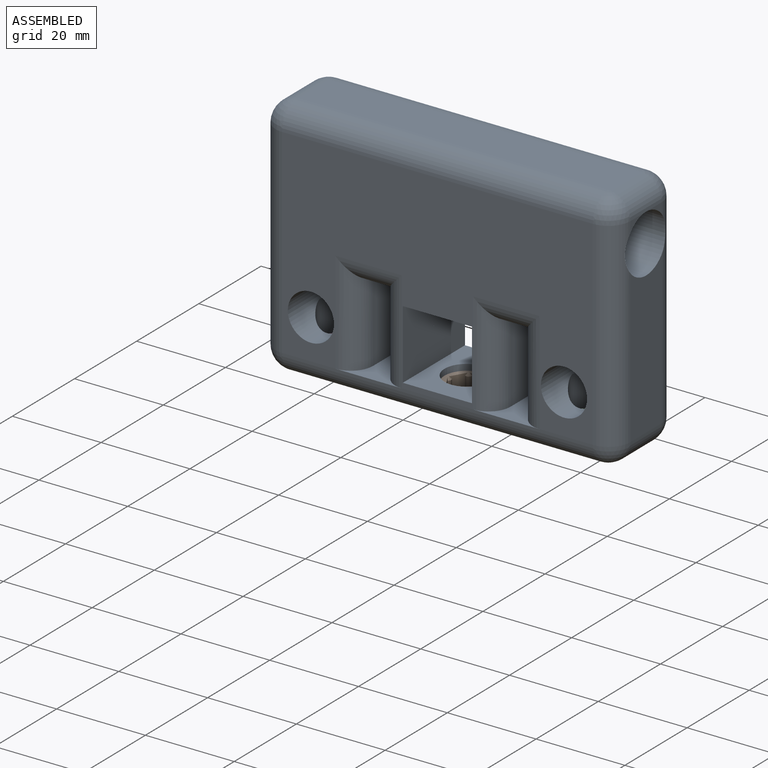
[diagram: assembled view]
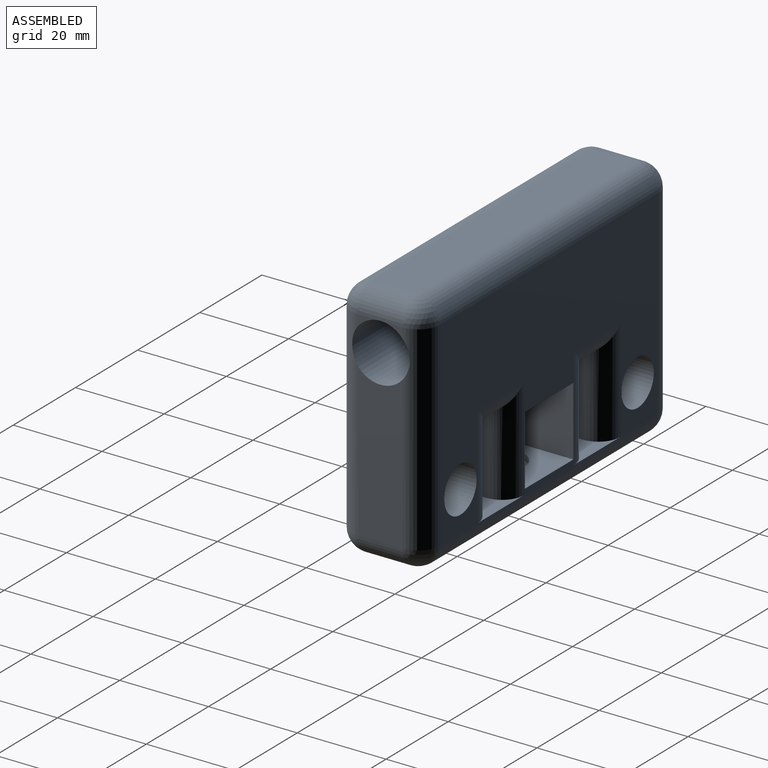
[diagram: assembled view, second angle]
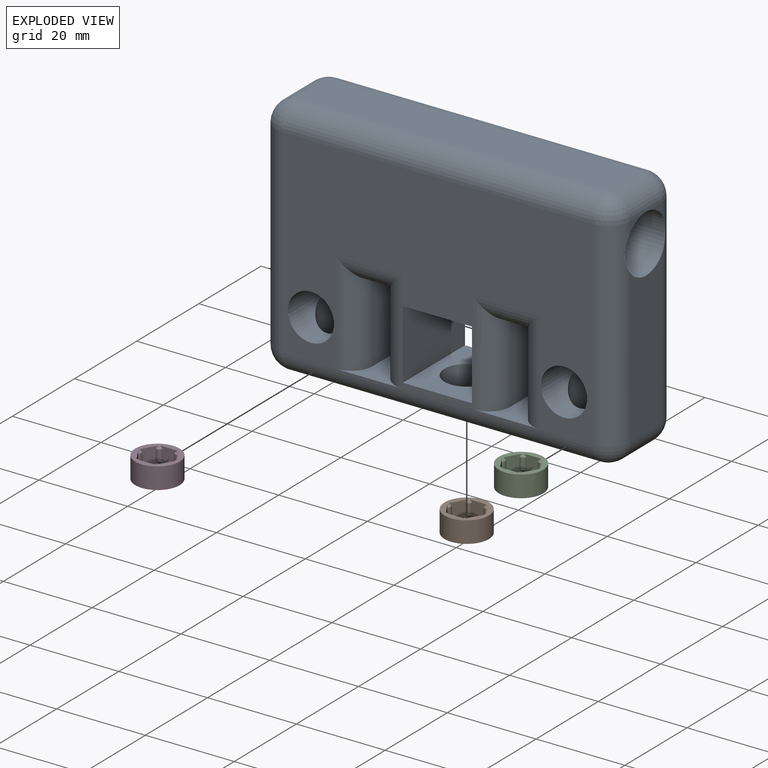
[diagram: exploded view]
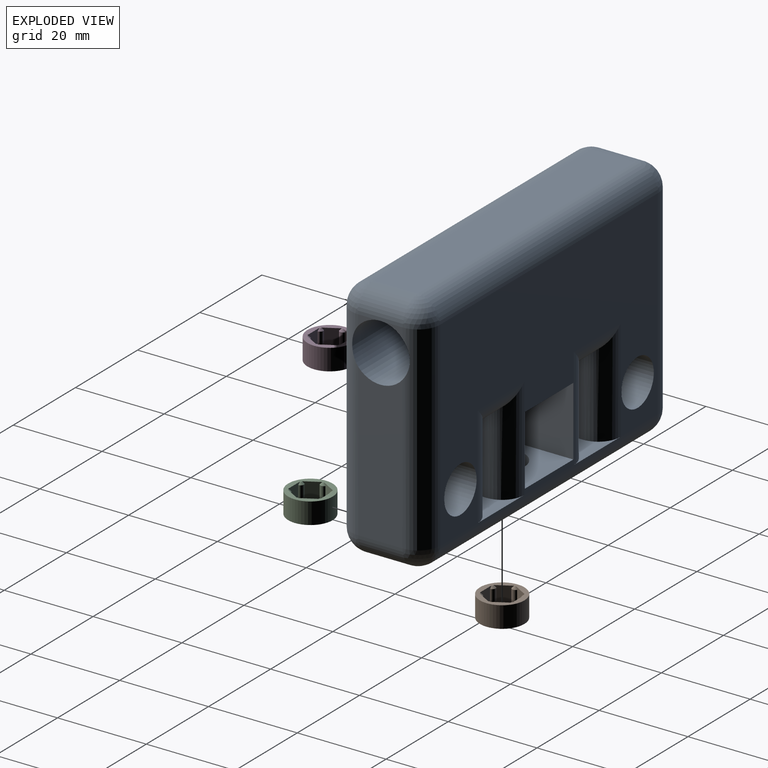
[diagram: exploded view, second angle]
ASSEMBLY  parts=4 mates=3
PART A: 67 faces, bbox 80x20x55 mm
  f0: plane 34.35x10mm, normal (-1,0,0), area 327.2mm2, adj f31,f38,f42,f43
  f1: plane 5x2.35mm, normal (-1,0,0), area 3.6mm2, adj f31,f35,f42
  f2: plane 63.5x10mm, normal (0,0,-1), area 440.6mm2, adj f32,f33,f34,f43,f48,f51
  f3: plane 5x2.35mm, normal (1,0,0), area 3.6mm2, adj f31,f40,f50
  f4: plane 5x2.35mm, normal (1,0,0), area 3.6mm2, adj f31,f40,f49
  f5: cylinder r=5.2mm len=20mm, axis (0,1,0), area 558.3mm2, adj f6,f7,f32
  f6: plane 70x45mm, normal (0,1,0), area 2046.7mm2, adj f5,f8,f9,f10,f11,f18,f41,f42
  f7: plane 70x45mm, normal (0,-1,0), area 2046.7mm2, adj f5,f8,f9,f10,f11,f18,f38,f39
  f8: plane 20x15.6mm, normal (-1,0,0), area 312mm2, adj f6,f7,f9,f11,f12
  f9: plane 20x15.6mm, normal (0,0,1), area 233.5mm2, adj f6,f7,f8,f10,f33
  f10: plane 20x15.6mm, normal (1,0,0), area 312mm2, adj f6,f7,f9,f11,f13
  f11: plane 20x15.6mm, normal (0,0,-1), area 312mm2, adj f6,f7,f8,f10,f14
  f12: cylinder r=0.05mm len=1.2mm, axis (-1,0,0), area 0.4mm2, adj f8,f17
  f13: cylinder r=0.05mm len=1.2mm, axis (-1,0,0), area 0.4mm2, adj f10,f16
  f14: cylinder r=0.05mm len=1.2mm, axis (0,0,1), area 0.4mm2, adj f11,f15
  f15: plane 0.1x0.1mm, normal (0,0,-1), area 0mm2, adj f14
  f16: plane 0.1x0.1mm, normal (1,0,0), area 0mm2, adj f13
  f17: plane 0.1x0.1mm, normal (-1,0,0), area 0mm2, adj f12
  f18: cylinder r=5.2mm len=20mm, axis (0,1,0), area 558.3mm2, adj f6,f7,f34
  f19: plane 10x6.5mm, normal (0,0,-1), area 25.7mm2, adj f32,f48,f51,f54
  f20: plane 34.35x10mm, normal (1,0,0), area 327.2mm2, adj f31,f49,f50,f54
  f21: plane 70x10mm, normal (0,0,1), area 700mm2, adj f35,f39,f40,f41
  f22: plane 18x10mm, normal (-1,0,0), area 180mm2, adj f23,f28,f55,f61
  f23: plane 20x15mm, normal (0,0,1), area 121.5mm2, adj f22,f24,f48,f51,f55,f56,f61,f62
  f24: plane 18x10mm, normal (1,0,0), area 180mm2, adj f23,f28,f56,f62
  f25: plane 18x10mm, normal (1,0,0), area 180mm2, adj f26,f29,f58,f64
  f26: plane 10x5mm, normal (0,0,-1), area 50mm2, adj f25,f27,f59,f65
  f27: plane 18x10mm, normal (-1,0,0), area 180mm2, adj f26,f29,f60,f66
  f28: plane 10x5mm, normal (0,0,-1), area 50mm2, adj f22,f24,f57,f63
  f29: plane 20x15mm, normal (0,0,1), area 121.5mm2, adj f25,f27,f48,f51,f58,f60,f64,f66
  f30: plane 5x2.35mm, normal (-1,0,0), area 3.6mm2, adj f31,f35,f38
  f31: cylinder r=6.5mm len=80mm, axis (1,0,0), area 3262.9mm2, adj f0,f1,f3,f4,f20,f30,f38,f42
  f32: cylinder r=5mm len=12.57mm, axis (0,0,-1), area 327.1mm2, adj f2,f5,f19
  f33: cylinder r=5mm len=10mm, axis (0,0,-1), area 194.8mm2, adj f2,f9,f48
  f34: cylinder r=5mm len=12.57mm, axis (0,0,-1), area 327.1mm2, adj f2,f18,f51
  f35: cylinder r=5mm len=10mm, axis (0,-1,0), area 78.5mm2, adj f1,f21,f30,f36,f37
  f36: sphere r=5mm, area 39.3mm2, adj f35,f38,f39
  f37: sphere r=5mm, area 39.3mm2, adj f35,f41,f42
  f38: cylinder r=5mm len=45mm, axis (0,0,1), area 344.8mm2, adj f0,f7,f30,f31,f36,f44
  f39: cylinder r=5mm len=70mm, axis (1,0,0), area 549.8mm2, adj f7,f21,f36,f45
  f40: cylinder r=5mm len=10mm, axis (0,1,0), area 78.5mm2, adj f3,f4,f21,f45,f46
  f41: cylinder r=5mm len=70mm, axis (-1,0,0), area 549.8mm2, adj f6,f21,f37,f46
  f42: cylinder r=5mm len=45mm, axis (0,0,-1), area 344.8mm2, adj f0,f1,f6,f31,f37,f47
  f43: cylinder r=5mm len=10mm, axis (0,1,0), area 78.5mm2, adj f0,f2,f44,f47
  f44: sphere r=5mm, area 39.3mm2, adj f38,f43,f48
  f45: sphere r=5mm, area 39.3mm2, adj f39,f40,f49
  f46: sphere r=5mm, area 39.3mm2, adj f40,f41,f50
  f47: sphere r=5mm, area 39.3mm2, adj f42,f43,f51
  f48: cylinder r=5mm len=70mm, axis (-1,0,0), area 548mm2, adj f2,f7,f19,f23,f29,f33,f44,f52
  f49: cylinder r=5mm len=45mm, axis (0,0,-1), area 344.8mm2, adj f4,f7,f20,f31,f45,f52
  f50: cylinder r=5mm len=45mm, axis (0,0,1), area 344.8mm2, adj f3,f6,f20,f31,f46,f53
  f51: cylinder r=5mm len=70mm, axis (1,0,0), area 549.6mm2, adj f2,f6,f19,f23,f29,f34,f47,f53
  f52: sphere r=5mm, area 39.3mm2, adj f48,f49,f54
  f53: sphere r=5mm, area 39.3mm2, adj f50,f51,f54
  f54: cylinder r=5mm len=10mm, axis (0,-1,0), area 78.5mm2, adj f19,f20,f52,f53
  f55: cylinder r=5mm len=23mm, axis (0,0,-1), area 155.6mm2, adj f6,f22,f23,f57
  f56: cylinder r=5mm len=23mm, axis (0,0,1), area 155.6mm2, adj f6,f23,f24,f57
  f57: cylinder r=5mm len=15mm, axis (1,0,0), area 67.8mm2, adj f6,f28,f55,f56
  f58: cylinder r=5mm len=23mm, axis (0,0,1), area 155.6mm2, adj f6,f25,f29,f59
  f59: cylinder r=5mm len=15mm, axis (1,0,0), area 67.8mm2, adj f6,f26,f58,f60
  f60: cylinder r=5mm len=23mm, axis (0,0,-1), area 155.6mm2, adj f6,f27,f29,f59
  f61: cylinder r=5mm len=23mm, axis (0,0,1), area 155.6mm2, adj f7,f22,f23,f63
  f62: cylinder r=5mm len=23mm, axis (0,0,-1), area 155.6mm2, adj f7,f23,f24,f63
  f63: cylinder r=5mm len=15mm, axis (-1,0,0), area 67.8mm2, adj f7,f28,f61,f62
  f64: cylinder r=5mm len=23mm, axis (0,0,-1), area 155.6mm2, adj f7,f25,f29,f65
  f65: cylinder r=5mm len=15mm, axis (-1,0,0), area 67.8mm2, adj f7,f26,f64,f66
  f66: cylinder r=5mm len=23mm, axis (0,0,1), area 155.6mm2, adj f7,f27,f29,f65
PART B: 29 faces, bbox 10x10x4.8 mm
  f0: plane 3.77x3.6mm, normal (0,-1,0), area 10.5mm2, adj f7,f8,f9,f10,f17,f18,f19,f26
  f1: plane 3.6x3.27mm, normal (-0.87,-0.5,0), area 10.5mm2, adj f7,f8,f9,f10,f14,f15,f16,f26
  f2: plane 3.6x3.27mm, normal (-0.87,0.5,0), area 10.5mm2, adj f7,f11,f12,f13,f14,f15,f16,f26
  f3: plane 3.77x3.6mm, normal (0,1,0), area 10.5mm2, adj f7,f11,f12,f13,f23,f24,f25,f26
  f4: plane 3.6x3.27mm, normal (0.87,0.5,0), area 10.5mm2, adj f7,f20,f21,f22,f23,f24,f25,f26
  f5: cylinder r=5mm len=10mm, axis (0,0,-1), area 150.8mm2, adj f7,f27
  f6: plane 3.6x3.27mm, normal (0.87,-0.5,0), area 10.5mm2, adj f7,f17,f18,f19,f20,f21,f22,f26
  f7: plane 10x10mm, normal (0,0,1), area 31.5mm2, adj f0,f1,f2,f3,f4,f5,f6,f9
  f8: cylinder r=0.75mm len=2.6mm, axis (0,0,-1), area 4.1mm2, adj f0,f1,f9,f10
  f9: cone r=0.25mm half-angle=45deg, axis (0,0,-1), area 0.7mm2, adj f0,f1,f7,f8
  f10: cone r=0.75mm half-angle=45deg, axis (0,0,1), area 0.7mm2, adj f0,f1,f8,f26
  f11: cylinder r=0.75mm len=2.6mm, axis (0,0,-1), area 4.1mm2, adj f2,f3,f12,f13
  f12: cone r=0.25mm half-angle=45deg, axis (0,0,-1), area 0.7mm2, adj f2,f3,f7,f11
  f13: cone r=0.75mm half-angle=45deg, axis (0,0,1), area 0.7mm2, adj f2,f3,f11,f26
  f14: cylinder r=0.75mm len=2.6mm, axis (0,0,-1), area 4.1mm2, adj f1,f2,f15,f16
  f15: cone r=0.25mm half-angle=45deg, axis (0,0,-1), area 0.7mm2, adj f1,f2,f7,f14
  f16: cone r=0.75mm half-angle=45deg, axis (0,0,1), area 0.7mm2, adj f1,f2,f14,f26
  f17: cone r=0.75mm half-angle=45deg, axis (0,0,1), area 0.7mm2, adj f0,f6,f19,f26
  f18: cone r=0.25mm half-angle=45deg, axis (0,0,-1), area 0.7mm2, adj f0,f6,f7,f19
  f19: cylinder r=0.75mm len=2.6mm, axis (0,0,-1), area 4.1mm2, adj f0,f6,f17,f18
  f20: cone r=0.75mm half-angle=45deg, axis (0,0,1), area 0.7mm2, adj f4,f6,f22,f26
  f21: cone r=0.25mm half-angle=45deg, axis (0,0,-1), area 0.7mm2, adj f4,f6,f7,f22
  f22: cylinder r=0.75mm len=2.6mm, axis (0,0,-1), area 4.1mm2, adj f4,f6,f20,f21
  f23: cylinder r=0.75mm len=2.6mm, axis (0,0,-1), area 4.1mm2, adj f3,f4,f24,f25
  f24: cone r=0.25mm half-angle=45deg, axis (0,0,-1), area 0.7mm2, adj f3,f4,f7,f23
  f25: cone r=0.75mm half-angle=45deg, axis (0,0,1), area 0.7mm2, adj f3,f4,f23,f26
  f26: plane 8.29x7.4mm, normal (0,0,1), area 31.8mm2, adj f0,f1,f2,f3,f4,f6,f10,f13
  f27: plane 10x10mm, normal (0,0,-1), area 63.3mm2, adj f5,f28
  f28: cylinder r=2.2mm len=4.4mm, axis (0,0,-1), area 16.6mm2, adj f26,f27
PART C: same geometry as B
PART D: same geometry as B
PLACE A t=(-0.36,-5.54,5.02)mm
PLACE B t=(-0.36,-16.1,-23.62)mm
PLACE C t=(28.14,-15.54,-23.62)mm
PLACE D t=(-28.86,-15.4,-23.62)mm
MATE fastened B.f28 <-> A.f33  axis (0,0,-1) through (-0.36,-16.1,-24.82)mm
MATE fastened D.f5 <-> A.f34  axis (0,0,-1) through (-28.86,-15.4,-24.82)mm
MATE fastened C.f5 <-> A.f32  axis (0,0,-1) through (28.14,-15.54,-24.82)mm
